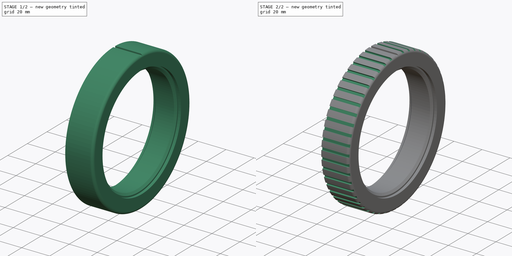
[diagram: build sequence overview — one tinted view per stage of 2, left to right]
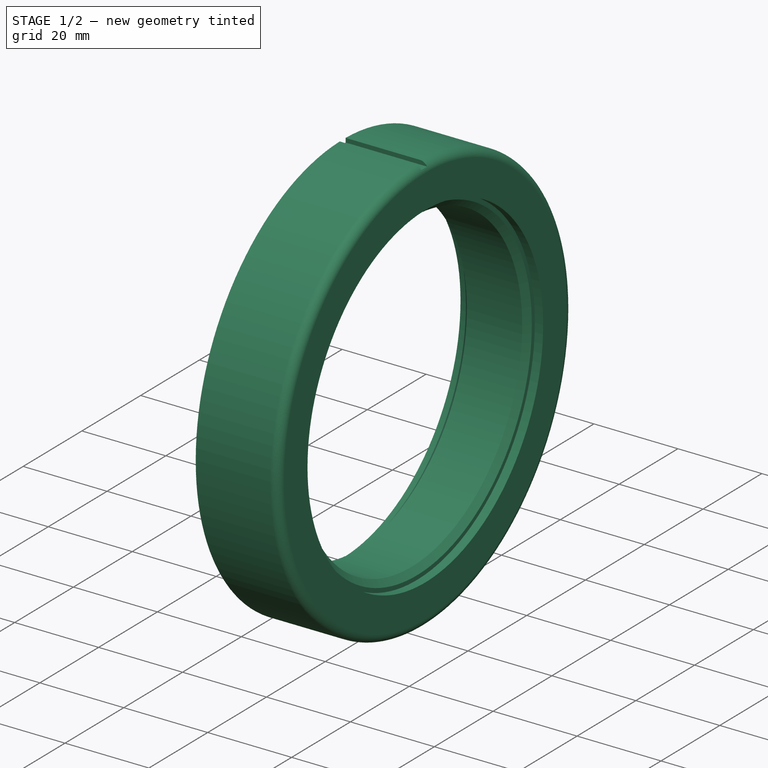
[diagram: stage 1 of 2 — iso view after this stage's code; geometry added in this stage tinted green]
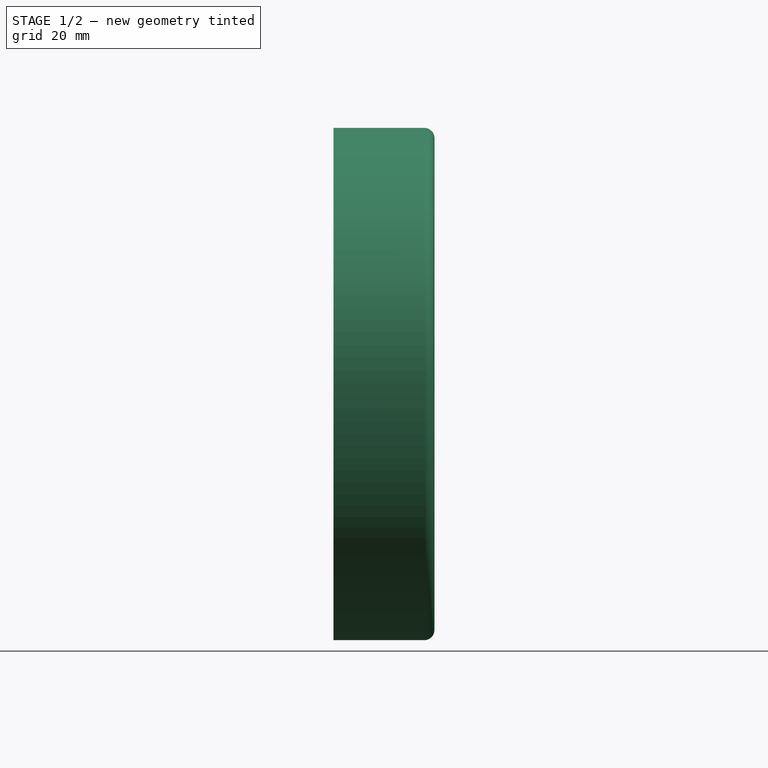
[diagram: stage 1 of 2 — front view after this stage's code; geometry added in this stage tinted green]
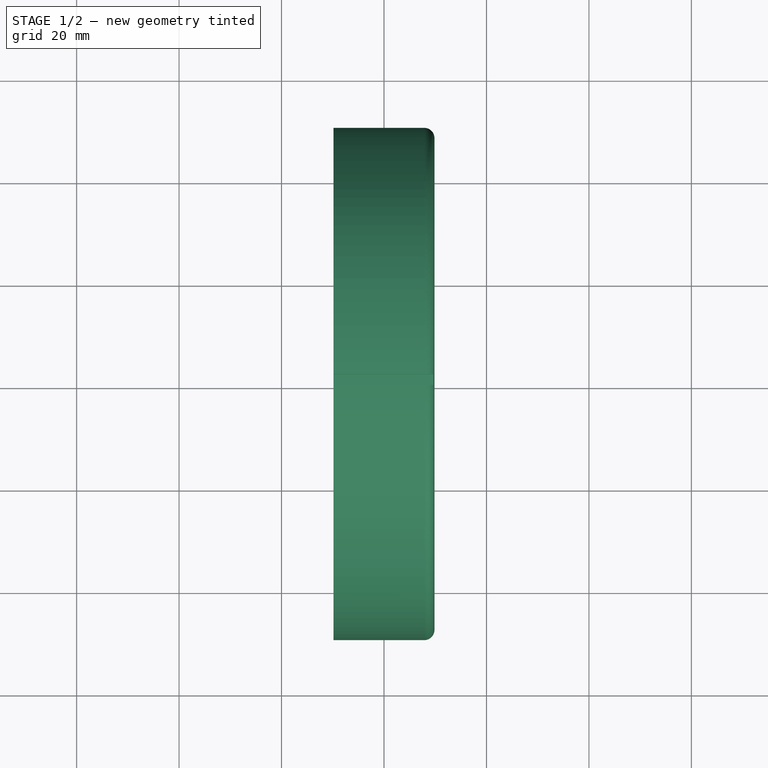
[diagram: stage 1 of 2 — top view after this stage's code; geometry added in this stage tinted green]
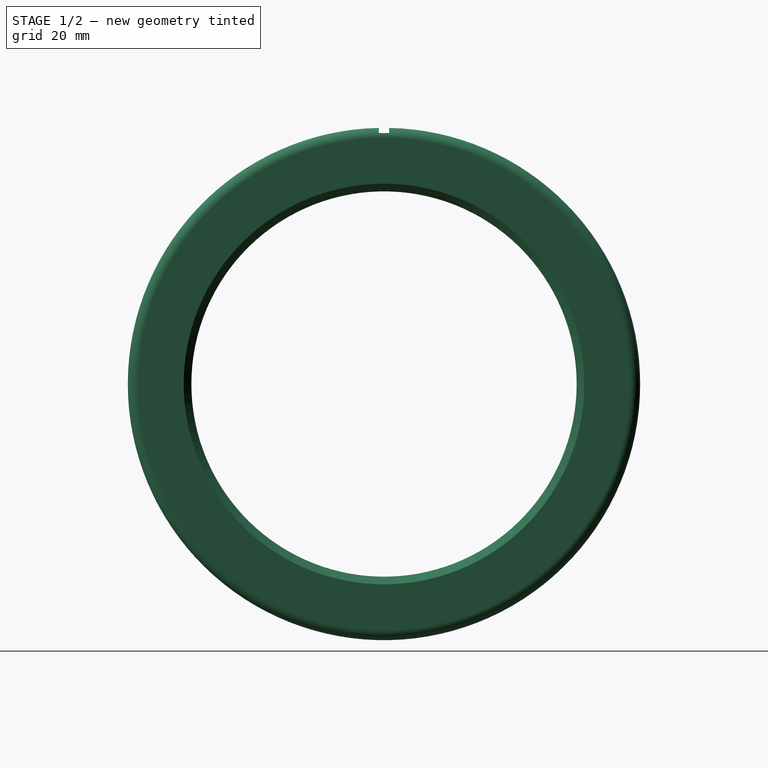
[diagram: stage 1 of 2 — right view after this stage's code; geometry added in this stage tinted green]
FCSTD DOCUMENT  (FreeCAD 0.17R13541 (Git))
Label: tire_v1
License: All rights reserved
LicenseURL: http://en.wikipedia.org/wiki/All_rights_reserved
objects: Sketcher::SketchObject×2, PartDesign::Revolution×1, PartDesign::Pocket×1, PartDesign::PolarPattern×1, PartDesign::Body×1
note: 8 computed .brp shape members not serialized (recipe doc carries the construction recipe); baked Part::Feature solids carry a one-line shape summary decoded from their .brp

FEATURE [Sketcher::SketchObject] Sketch
  MapMode = 5
  Support = -> [XY_Plane]
  sketch-geometry (19):
    g0: LineSegment StartX=-7.85 StartY=39.1 StartZ=0 EndX=-6.6 EndY=37.6 EndZ=0
    g1: LineSegment StartX=-6.6 StartY=37.6 StartZ=0 EndX=6.6 EndY=37.6 EndZ=0
    g2: LineSegment StartX=6.6 StartY=37.6 StartZ=0 EndX=7.85 EndY=39.1 EndZ=0
    g3: LineSegment StartX=7.8525 StartY=50 StartZ=0 EndX=-9.85 EndY=50 EndZ=0
    g4: ArcOfCircle CenterX=7.8525 CenterY=48 CenterZ=0 NormalX=0 NormalY=0 NormalZ=1 AngleXU=0 Radius=2 StartAngle=0.0500209 EndAngle=1.5708
    g5: LineSegment StartX=-4.85 StartY=48 StartZ=0 EndX=4.85 EndY=48 EndZ=0
    g6: LineSegment StartX=6.85 StartY=46 StartZ=0 EndX=6.85 EndY=41.6 EndZ=0
    g7: LineSegment StartX=4.85 StartY=39.6 StartZ=0 EndX=-4.85 EndY=39.6 EndZ=0
    g8: LineSegment StartX=-6.85 StartY=41.6 StartZ=0 EndX=-6.85 EndY=46 EndZ=0
    g9: ArcOfCircle CenterX=-4.85 CenterY=46 CenterZ=0 NormalX=0 NormalY=0 NormalZ=1 AngleXU=0 Radius=2 StartAngle=1.5708 EndAngle=3.14159
    g10: ArcOfCircle CenterX=4.85 CenterY=46 CenterZ=0 NormalX=0 NormalY=0 NormalZ=1 AngleXU=0 Radius=2 StartAngle=0 EndAngle=1.5708
    g11: ArcOfCircle CenterX=4.85 CenterY=41.6 CenterZ=0 NormalX=0 NormalY=0 NormalZ=1 AngleXU=0 Radius=2 StartAngle=4.71239 EndAngle=6.28319
    g12: ArcOfCircle CenterX=-4.85 CenterY=41.6 CenterZ=0 NormalX=0 NormalY=0 NormalZ=1 AngleXU=0 Radius=2 StartAngle=3.14159 EndAngle=4.71239
    g13: LineSegment StartX=7.85 StartY=39.1 StartZ=0 EndX=7.85 EndY=40.1 EndZ=0
    g14: LineSegment StartX=7.85 StartY=40.1 StartZ=0 EndX=9.85 EndY=40.1 EndZ=0
    g15: LineSegment StartX=9.85 StartY=40.1 StartZ=0 EndX=9.85 EndY=48.1 EndZ=0
    g16: LineSegment StartX=-9.85 StartY=40.1 StartZ=0 EndX=-7.85 EndY=40.1 EndZ=0
    g17: LineSegment StartX=-7.85 StartY=39.1 StartZ=0 EndX=-7.85 EndY=40.1 EndZ=0
    g18: LineSegment StartX=-9.85 StartY=50 StartZ=0 EndX=-9.85 EndY=40.1 EndZ=0
  constraints (53):
    c: Coincident(g0,g1)
    c: Horizontal(g1)
    c: Coincident(g1,g2)
    c: Horizontal(g3)
    c: DistanceY(g-1,g1) = 37.6
    c: Tangent(g3,g4) = -1.5708
    c: Symmetric(g0,g1,g-2)
    c: DistanceX(g-1,g1) = 6.6
    c: Equal(g2,g0)
    c: DistanceX(g1,g2) = 1.25
    c: DistanceY(g1,g2) = 1.5
    c: Radius(g4) = 2
    c: Horizontal(g5)
    c: Horizontal(g7)
    c: Vertical(g6)
    c: Vertical(g8)
    c: Tangent(g5,g9) = 1.5708
    c: Tangent(g8,g9) = 1.5708
    c: Tangent(g5,g10) = 1.5708
    c: Tangent(g6,g10) = 1.5708
    c: Tangent(g6,g11) = 1.5708
    c: Tangent(g7,g11) = 1.5708
    c: Tangent(g7,g12) = 1.5708
    c: Tangent(g8,g12) = 1.5708
    c: DistanceY(g1,g7) = 2
    c: Equal(g11,g10)
    c: Equal(g10,g9)
    c: Equal(g9,g12)
    c: Radius(g10) = 2
    c: DistanceX(g6,g2) = 1
    c: Symmetric(g7,g7,g-2)
    c: DistanceY(g5,g3) = 2
    c: Vertical(g13)
    c: Coincident(g2,g13)
    c: DistanceY(g13,g13) = 1
    c: Horizontal(g14)
    c: Vertical(g15)
    c: Coincident(g14,g15)
    c: DistanceX(g14,g14) = 2
    c: Coincident(g13,g14)
    c: Coincident(g4,g15)
    c: Horizontal(g16)
    c: Vertical(g17)
    c: Coincident(g17,g0)
    c: DistanceY(g17,g17) = 1
    c: Coincident(g16,g17)
    c: DistanceX(g16,g16) = 2
    c: DistanceY(g1,g3) = 12.4
    c: DistanceY(g0,g0) = 1.5
    c: DistanceY(g15,g15) = 8
    c: Vertical(g18)
    c: Coincident(g16,g18)
    c: Coincident(g3,g18)
FEATURE [PartDesign::Revolution] Revolution
  Angle = 360
  Axis = (1,0,0)
  Base = (0,0,0)
  Profile = -> Sketch
  ReferenceAxis = -> Sketch [H_Axis]
FEATURE [Sketcher::SketchObject] Sketch001
  MapMode = 5
  Placement = pos=(-9.85,0,0) rot=(0.57735,-0.57735,-0.57735;2.0944rad)
  Support = -> [Revolution]
  sketch-geometry (4):
    g0: LineSegment StartX=-1 StartY=50 StartZ=0 EndX=1 EndY=50 EndZ=0
    g1: LineSegment StartX=1 StartY=50 StartZ=0 EndX=1 EndY=49 EndZ=0
    g2: LineSegment StartX=1 StartY=49 StartZ=0 EndX=-1 EndY=49 EndZ=0
    g3: LineSegment StartX=-1 StartY=49 StartZ=0 EndX=-1 EndY=50 EndZ=0
  constraints (12):
    c: Coincident(g0,g1)
    c: Coincident(g1,g2)
    c: Coincident(g2,g3)
    c: Coincident(g3,g0)
    c: Horizontal(g0)
    c: Horizontal(g2)
    c: Vertical(g1)
    c: Vertical(g3)
    c: DistanceX(g2,g2) = 2
    c: DistanceY(g1,g1) = 1
    c: Symmetric(g2,g1,g-2)
    c: DistanceY(g-1,g0) = 50
FEATURE [PartDesign::Pocket] Pocket
  BaseFeature = -> Revolution
  Length = 5
  Length2 = 100
  Profile = -> Sketch001
  Type = 1
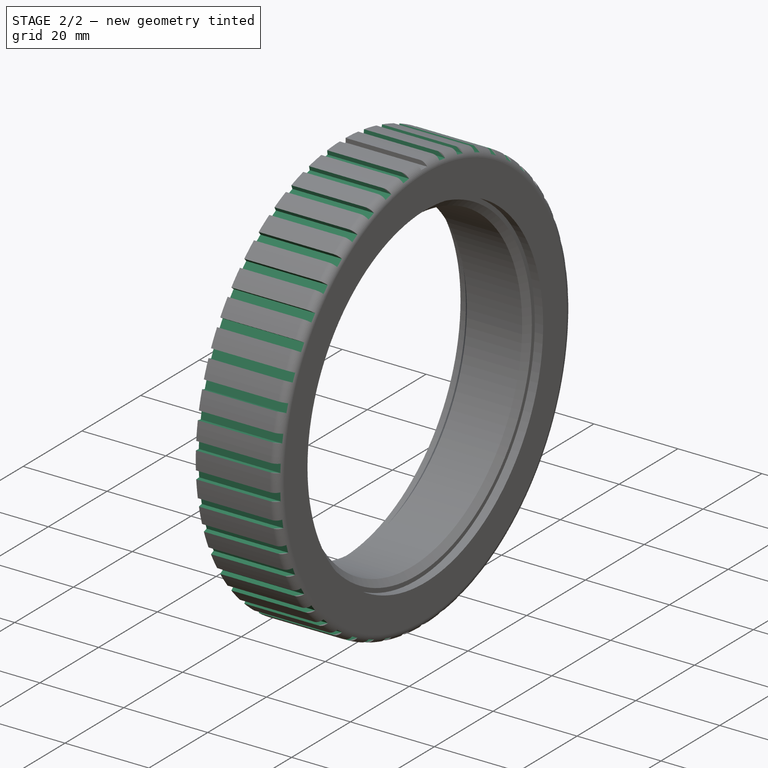
[diagram: stage 2 of 2 — iso view after this stage's code; geometry added in this stage tinted green]
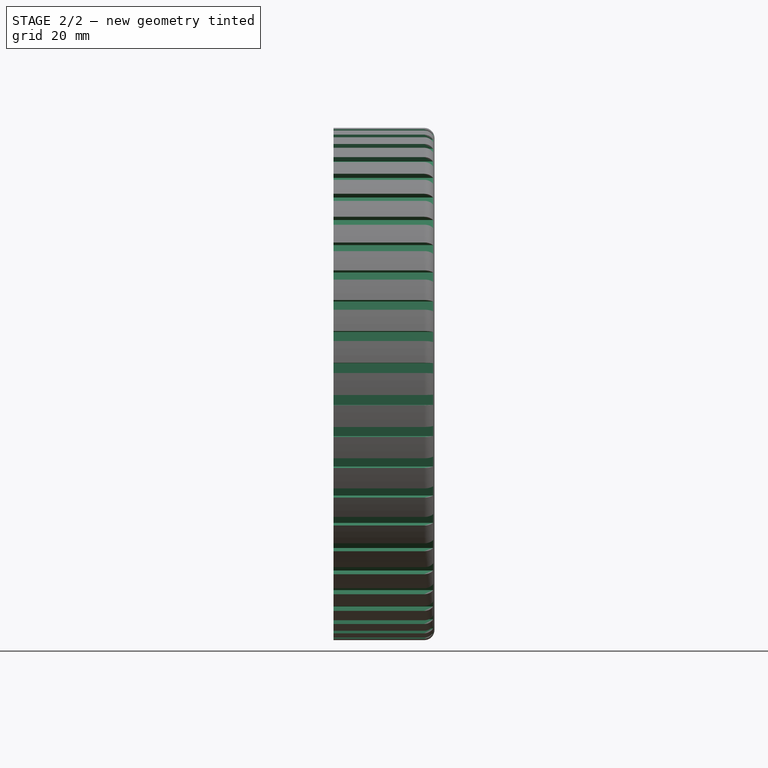
[diagram: stage 2 of 2 — front view after this stage's code; geometry added in this stage tinted green]
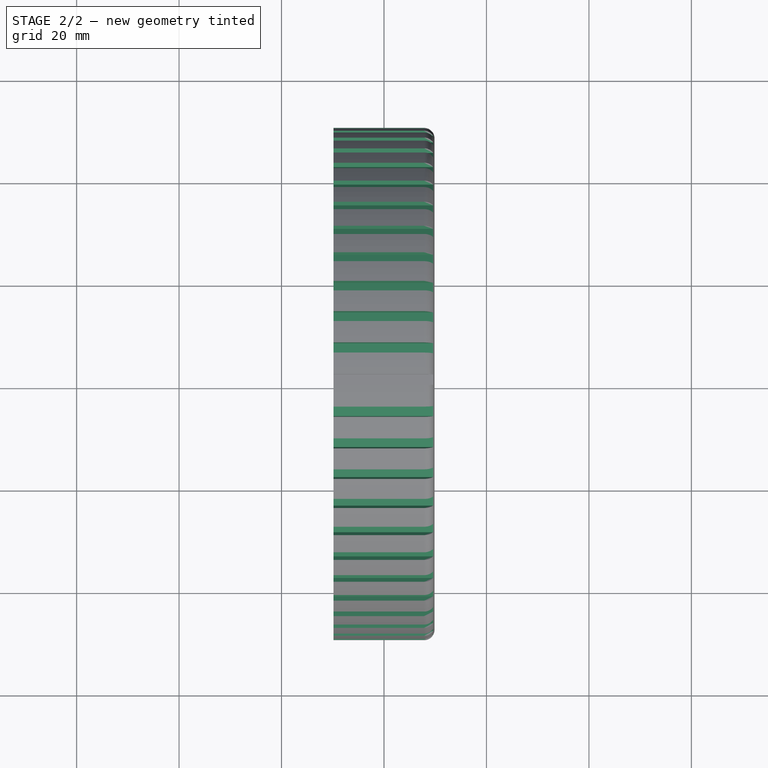
[diagram: stage 2 of 2 — top view after this stage's code; geometry added in this stage tinted green]
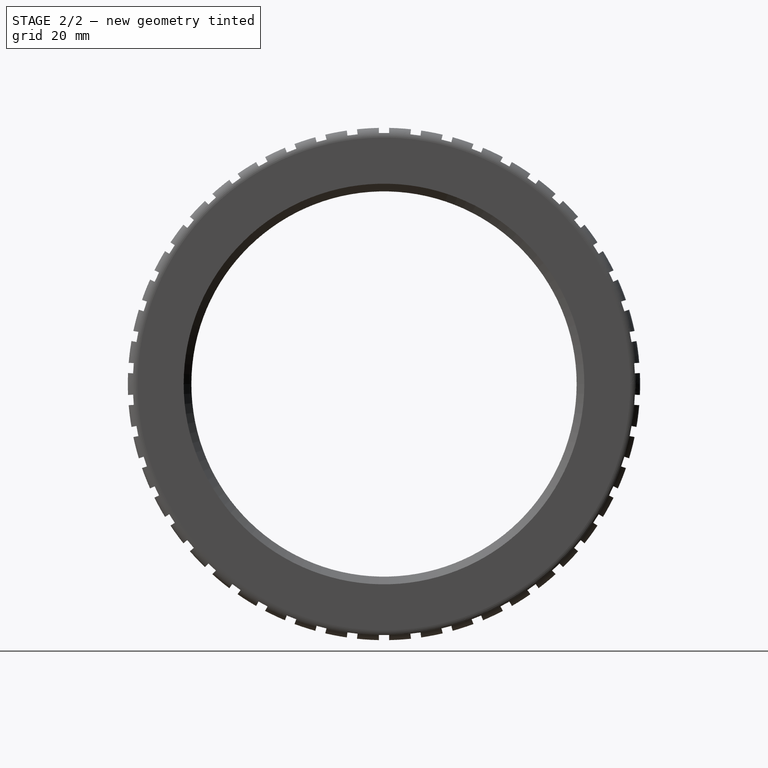
[diagram: stage 2 of 2 — right view after this stage's code; geometry added in this stage tinted green]
FEATURE [PartDesign::PolarPattern] PolarPattern
  Angle = 360
  Axis = -> Sketch001 [N_Axis]
  BaseFeature = -> Pocket
  Occurrences = 50
  Originals = -> [Pocket]
FEATURE [PartDesign::Body] Body
  Group = -> [Sketch,Revolution,Sketch001,Pocket,PolarPattern]
  Origin = -> Origin
  Tip = -> PolarPattern
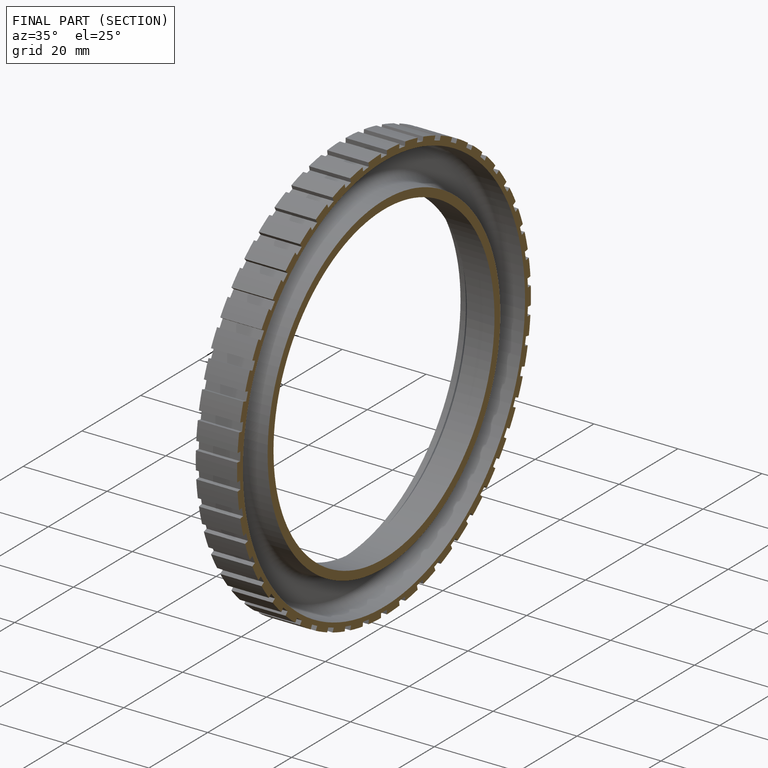
[diagram: finished part — half-section view (interior)]
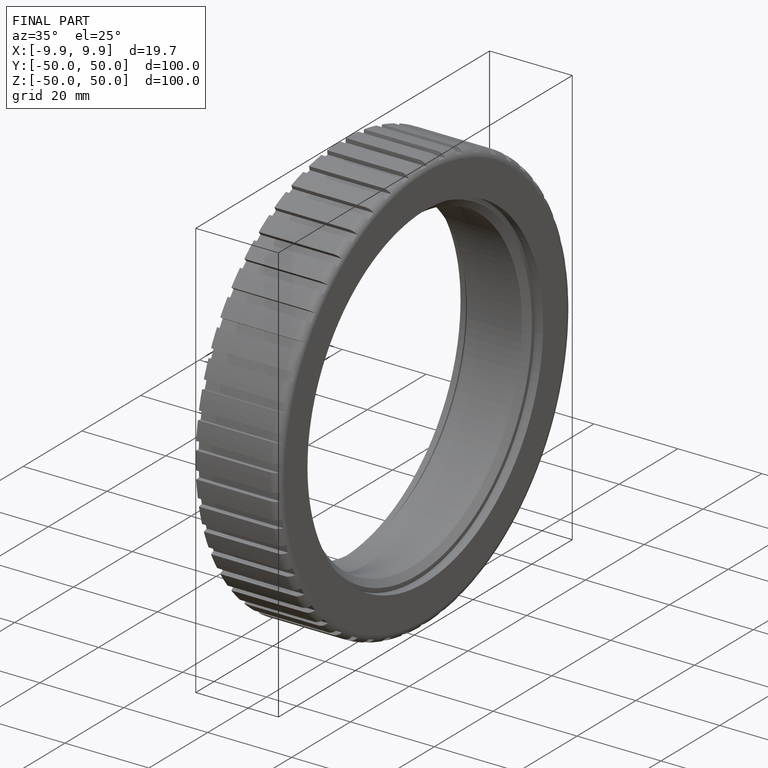
[diagram: finished part — iso view with bounding-box wireframe]
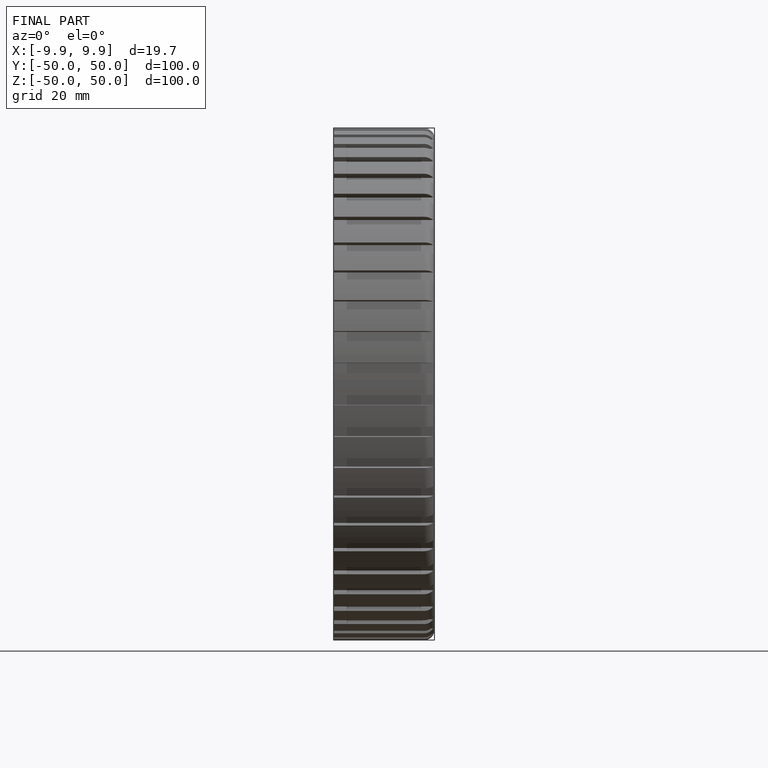
[diagram: finished part — front view with bounding-box wireframe]
